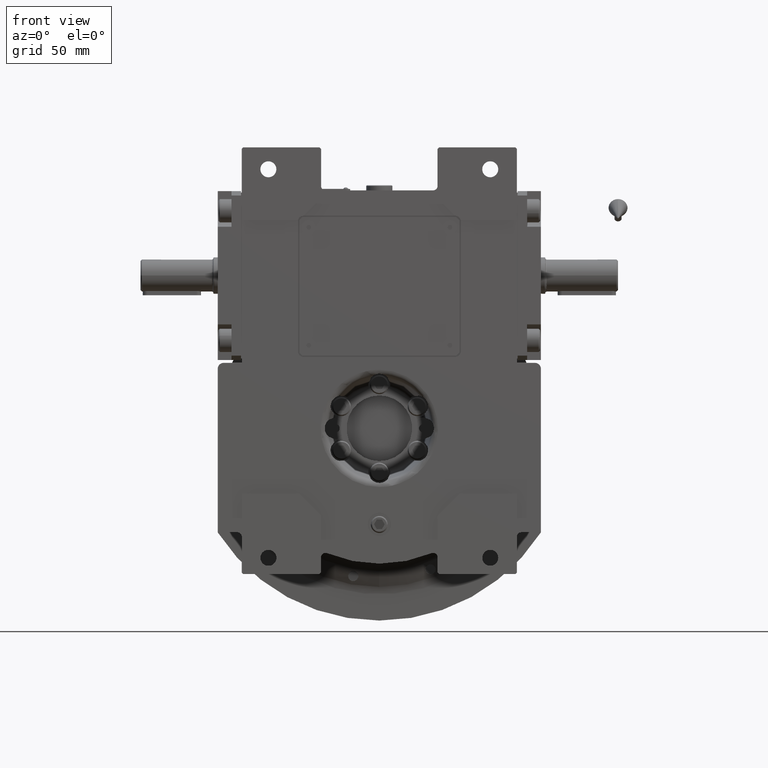
[diagram: clean part render]
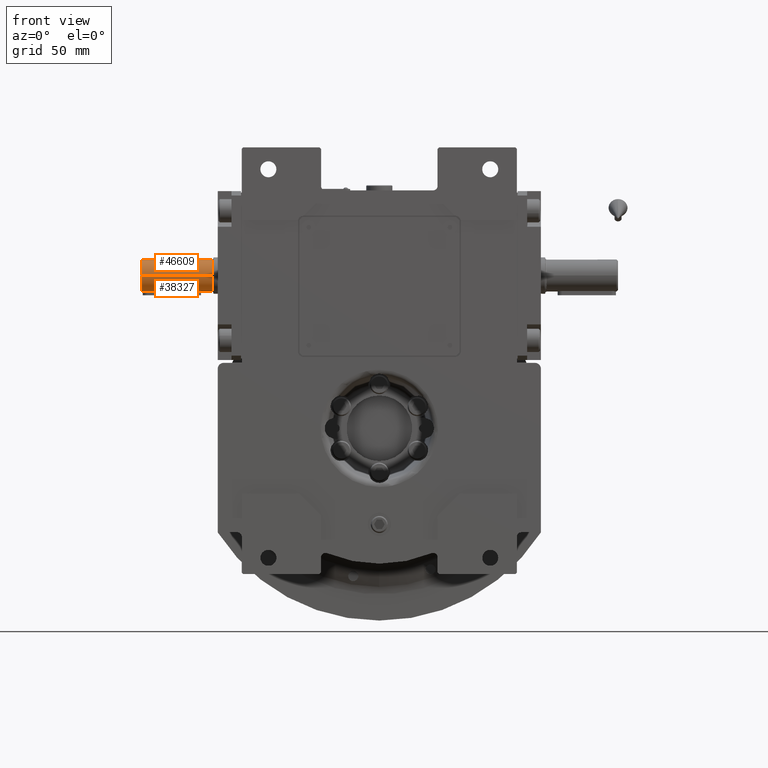
[diagram: same view with one multi-face feature highlighted, each face labeled with its STEP entity id]
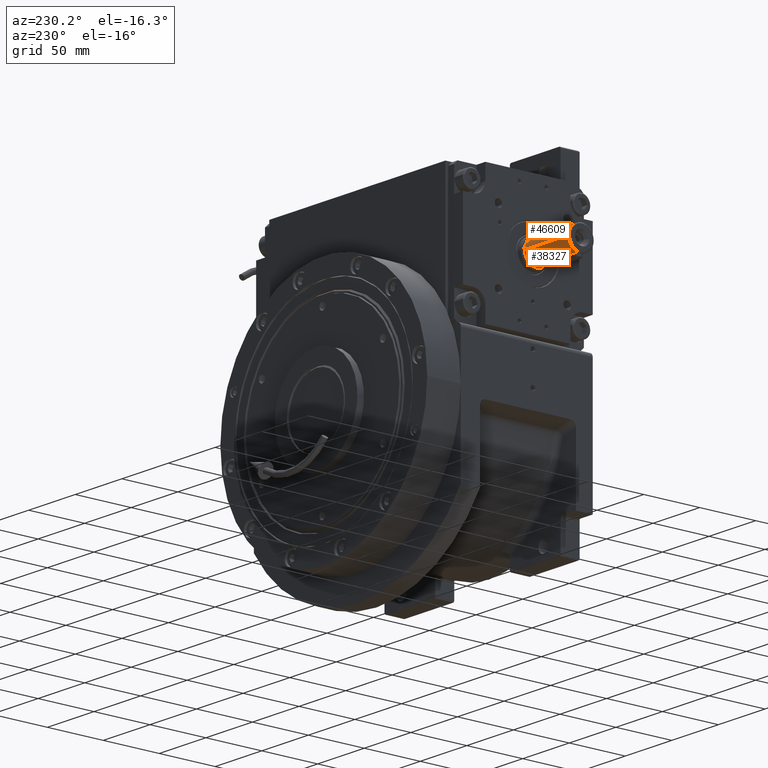
[diagram: same view with one multi-face feature highlighted, each face labeled with its STEP entity id]
A machine part, front view. The highlighted faces form ONE feature: a constant-radius fillet chain: 2 tangent blend faces with common blend radius 11 mm. The faces share edges in the B-rep.
A second angle (auxiliary view) of the same feature is appended — it is thin or edge-on in the first view.
Their STEP definitions:
[1] entity #46609 (Cylinder):
#1356 = CARTESIAN_POINT ( 'NONE',  ( 8.348436726547641190E-14, 208.9999108029441004, -10.99991079990971343 ) ) ;
#2759 = VERTEX_POINT ( 'NONE', #7913 ) ;
#5079 = CARTESIAN_POINT ( 'NONE',  ( -9.611494287303022688, 208.9998216060406548, -5.539719106973692853 ) ) ;
#6327 = CARTESIAN_POINT ( 'NONE',  ( 8.796192603699495294, 208.9998216058430103, -6.759904287097469044 ) ) ;
#7016 = CARTESIAN_POINT ( 'NONE',  ( 8.348436726547641190E-14, 208.9999108029441004, -10.99991079990971343 ) ) ;
#7913 = CARTESIAN_POINT ( 'NONE',  ( -11.00000000000000000, 161.0000000000000284, -4.628547545237893246E-09 ) ) ;
#9653 = EDGE_CURVE ( 'NONE', #33626, #2759, #21264, .T. ) ;
#11753 = DIRECTION ( 'NONE',  ( -4.190823558986625216E-31, 1.000000000000000000, 8.381647117973250432E-31 ) ) ;
#16119 = CYLINDRICAL_SURFACE ( 'NONE', #52306, 11.00000000000000000 ) ;
#17120 = DIRECTION ( 'NONE',  ( -1.000000000000000000, 0.000000000000000000, 7.549516567451066053E-15 ) ) ;
#17142 = DIRECTION ( 'NONE',  ( 1.000000000000000000, 0.000000000000000000, -7.588538872936350375E-15 ) ) ;
#17989 = EDGE_CURVE ( 'NONE', #2759, #44556, #36127, .T. ) ;
#18351 = CARTESIAN_POINT ( 'NONE',  ( 9.611494386408642399, 208.9998216058298226, -5.539718941646428085 ) ) ;
#21264 = CIRCLE ( 'NONE', #44992, 11.00000000000000000 ) ;
#21582 = CARTESIAN_POINT ( 'NONE',  ( 11.00000000000000000, 161.0000000000000284, 4.629005512235551123E-09 ) ) ;
#23950 = EDGE_CURVE ( 'NONE', #46419, #31679, #46762, .T. ) ;
#24407 = B_SPLINE_CURVE_WITH_KNOTS ( 'NONE', 3,
 ( #1356, #37521, #25724, #62894, #47661, #36865, #5079, #51741, #57492, #41903 ),
 .UNSPECIFIED., .F., .F.,
 ( 4, 2, 2, 2, 4 ),
 ( 0.5000000041388067418, 0.6250000031041050841, 0.7500000020694035374, 0.8750000010347016577, 1.000000000000000000 ),
 .UNSPECIFIED. ) ;
#25724 = CARTESIAN_POINT ( 'NONE',  ( -2.879179983519349673, 208.9998216059615856, -10.71352569620751538 ) ) ;
#26572 = EDGE_LOOP ( 'NONE', ( #46343, #46758, #48083, #38840, #49494 ) ) ;
#28828 = DIRECTION ( 'NONE',  ( -4.190823558986625216E-31, 1.000000000000000000, 8.381647117973250432E-31 ) ) ;
#29204 = CARTESIAN_POINT ( 'NONE',  ( 10.99982159923406400, 208.9998216057902880, -1.439873285504408296 ) ) ;
#30432 = EDGE_CURVE ( 'NONE', #33626, #46419, #33877, .T. ) ;
#31061 = DIRECTION ( 'NONE',  ( -4.190823558986625216E-31, 1.000000000000000000, 8.381647117973250432E-31 ) ) ;
#31679 = VERTEX_POINT ( 'NONE', #57009 ) ;
#33626 = VERTEX_POINT ( 'NONE', #21582 ) ;
#33877 = LINE ( 'NONE', #34214, #63745 ) ;
#33922 = CARTESIAN_POINT ( 'NONE',  ( 1.439873279901216829, 208.9998216059220510, -10.99982159983306218 ) ) ;
#34214 = CARTESIAN_POINT ( 'NONE',  ( 11.00000000000000000, 161.0000000000000284, 0.000000000000000000 ) ) ;
#34339 = CARTESIAN_POINT ( 'NONE',  ( -10.99995538991750088, 208.9999554115215119, -1.645558550533721132E-07 ) ) ;
#36127 = LINE ( 'NONE', #56745, #56431 ) ;
#36865 = CARTESIAN_POINT ( 'NONE',  ( -8.796192498803421245, 208.9998216060274672, -6.759904418209416121 ) ) ;
#37093 = FACE_OUTER_BOUND ( 'NONE', #26572, .T. ) ;
#37521 = CARTESIAN_POINT ( 'NONE',  ( -1.439873256063618490, 208.9998216059484264, -10.99982159980673657 ) ) ;
#38840 = ORIENTED_EDGE ( 'NONE', *, *, #17989, .T. ) ;
#39651 = CARTESIAN_POINT ( 'NONE',  ( 5.539718936738789345, 208.9998216058825449, -9.611494389175367914 ) ) ;
#41903 = CARTESIAN_POINT ( 'NONE',  ( -10.99995538991750088, 208.9999554115215119, -1.645558550533721132E-07 ) ) ;
#43882 = CARTESIAN_POINT ( 'NONE',  ( 11.00000000000000000, 208.9999777057610117, 0.000000000000000000 ) ) ;
#44376 = CARTESIAN_POINT ( 'NONE',  ( 10.71352568530425131, 208.9998216058034757, -2.879180036626198369 ) ) ;
#44556 = VERTEX_POINT ( 'NONE', #34339 ) ;
#44992 = AXIS2_PLACEMENT_3D ( 'NONE', #59090, #11753, #17142 ) ;
#46343 = ORIENTED_EDGE ( 'NONE', *, *, #23950, .F. ) ;
#46419 = VERTEX_POINT ( 'NONE', #43882 ) ;
#46609 = ADVANCED_FACE ( 'NONE', ( #37093 ), #16119, .T. ) ;
#46758 = ORIENTED_EDGE ( 'NONE', *, *, #30432, .F. ) ;
#46762 = B_SPLINE_CURVE_WITH_KNOTS ( 'NONE', 3,
 ( #52647, #29204, #44376, #18351, #6327, #53323, #39651, #60295, #33922, #7016 ),
 .UNSPECIFIED., .F., .F.,
 ( 4, 2, 2, 2, 4 ),
 ( 0.000000000000000000, 0.1250000010347017687, 0.2500000020694034819, 0.3750000031041051396, 0.5000000041388067418 ),
 .UNSPECIFIED. ) ;
#47661 = CARTESIAN_POINT ( 'NONE',  ( -6.759904185019623313, 208.9998216060011771, -8.796192678043544433 ) ) ;
#47687 = EDGE_CURVE ( 'NONE', #31679, #44556, #24407, .T. ) ;
#47894 = CARTESIAN_POINT ( 'NONE',  ( -1.806714880829665954E-27, 160.0000000000000284, 4.718447854656915297E-13 ) ) ;
#48083 = ORIENTED_EDGE ( 'NONE', *, *, #9653, .T. ) ;
#49494 = ORIENTED_EDGE ( 'NONE', *, *, #47687, .F. ) ;
#51741 = CARTESIAN_POINT ( 'NONE',  ( -10.71352561977210627, 208.9998216060669733, -2.879180267530153881 ) ) ;
#52306 = AXIS2_PLACEMENT_3D ( 'NONE', #47894, #58736, #17120 ) ;
#52647 = CARTESIAN_POINT ( 'NONE',  ( 11.00000000000000000, 208.9999777057610117, 0.000000000000000000 ) ) ;
#53323 = CARTESIAN_POINT ( 'NONE',  ( 6.759904282614697557, 208.9998216058694140, -8.796192607111569473 ) ) ;
#56431 = VECTOR ( 'NONE', #31061, 1000.000000000000000 ) ;
#56745 = CARTESIAN_POINT ( 'NONE',  ( -11.00000000000000000, 161.0000000000000284, 4.718447854656915297E-13 ) ) ;
#57009 = CARTESIAN_POINT ( 'NONE',  ( 8.348436726547641190E-14, 208.9999108029441004, -10.99991079990971343 ) ) ;
#57492 = CARTESIAN_POINT ( 'NONE',  ( -10.99982156150041668, 208.9998216060801894, -1.439873547674900500 ) ) ;
#58736 = DIRECTION ( 'NONE',  ( 4.190823558986625216E-31, -1.000000000000000000, -8.381647117973250432E-31 ) ) ;
#59090 = CARTESIAN_POINT ( 'NONE',  ( -8.881784197019319210E-16, 161.0000000000000284, 4.718447854656915297E-13 ) ) ;
#60295 = CARTESIAN_POINT ( 'NONE',  ( 2.879180031158224740, 208.9998216059088918, -10.71352568666412175 ) ) ;
#62894 = CARTESIAN_POINT ( 'NONE',  ( -5.539718852179369435, 208.9998216059880178, -9.611494434219167715 ) ) ;
#63745 = VECTOR ( 'NONE', #28828, 1000.000000000000000 ) ;
[2] entity #38327 (Cylinder):
#10 = VERTEX_POINT ( 'NONE', #52201 ) ;
#17 = B_SPLINE_CURVE_WITH_KNOTS ( 'NONE', 3,
 ( #43343, #63993, #13246, #59250, #17980, #64318, #18304, #17323, #33872, #38303, #54509, #12907, #12591, #53516, #64638, #43006, #58929, #54187 ),
 .UNSPECIFIED., .F., .F.,
 ( 4, 2, 2, 2, 2, 2, 2, 2, 4 ),
 ( 0.000000000000000000, 0.1250000000000000000, 0.2500000000000000000, 0.3750000000000000000, 0.5000000000000000000, 0.6250000000000000000, 0.7500000000000000000, 0.8750000000000000000, 1.000000000000000000 ),
 .UNSPECIFIED. ) ;
#786 = ORIENTED_EDGE ( 'NONE', *, *, #18580, .F. ) ;
#822 = CARTESIAN_POINT ( 'NONE',  ( -2.854075951817782286, 170.5744775876573556, 10.62355100343989101 ) ) ;
#942 = CARTESIAN_POINT ( 'NONE',  ( -0.6690471670458788545, 208.4261023684203451, 10.97984746646838872 ) ) ;
#1497 = CARTESIAN_POINT ( 'NONE',  ( -2.831211770130450223, 170.5058840566492506, 10.62945303911996753 ) ) ;
#1630 = B_SPLINE_CURVE_WITH_KNOTS ( 'NONE', 3,
 ( #29422, #39848, #55417, #14154, #24994, #12905, #9420, #66216, #49988, #35444, #34795, #19890, #54185, #29739, #7868, #50644, #50321, #7210, #3683, #4008, #30059, #45583, #40519, #27822, #14813, #48417, #56408, #61834, #10760, #10092, #15496, #59257, #66547, #5017, #15152, #36132, #57080, #5696, #942, #11100, #46248, #5356, #62488, #51336, #41522, #35793, #20905, #31407, #51672, #41188, #51004, #62831, #41839, #36460, #25998, #46581, #4681, #25656, #16152, #52016, #31734, #25328, #45913, #56058, #20562, #30735, #56752, #36794, #10434, #15825, #31068, #42173 ),
 .UNSPECIFIED., .F., .F.,
 ( 4, 2, 2, 1, 1, 1, 2, 2, 2, 2, 2, 2, 2, 2, 2, 2, 1, 1, 2, 2, 2, 2, 2, 1, 1, 1, 2, 2, 2, 2, 2, 2, 2, 2, 2, 2, 1, 1, 2, 2, 4 ),
 ( 0.000000000000000000, 0.06249999999979319321, 0.09374999999968548769, 0.1093749999996316419, 0.1171874999996089517, 0.1210937499995975442, 0.1230468749995918820, 0.1249999999995862060, 0.1874999999995273503, 0.2187499999995015654, 0.2343749999994916011, 0.2421874999994891586, 0.2499999999994867439, 0.3124999999994863553, 0.3437499999994862443, 0.3593749999994861333, 0.3671874999994884647, 0.3710937499994895195, 0.3730468749994876321, 0.3749999999994858002, 0.4999999999993999245, 0.5624999999993569588, 0.5937499999993364197, 0.6093749999993260946, 0.6171874999993223199, 0.6210937499993219868, 0.6230468749993218758, 0.6249999999993216537, 0.6874999999994270139, 0.7187499999994796385, 0.7343749999995060618, 0.7421874999995192734, 0.7499999999995324851, 0.8124999999996329603, 0.8437499999996794786, 0.8593749999997026823, 0.8671874999997142286, 0.8710937499997200018, 0.8730468749997227773, 0.8749999999997254418, 1.000000000000000000 ),
 .UNSPECIFIED. ) ;
#2150 = DIRECTION ( 'NONE',  ( 4.190823558986625216E-31, -1.000000000000000000, -8.381647117973250432E-31 ) ) ;
#2759 = VERTEX_POINT ( 'NONE', #7913 ) ;
#2820 = CARTESIAN_POINT ( 'NONE',  ( 0.1869661390004682955, 168.4999999914901139, 11.00000259683182691 ) ) ;
#3491 = CARTESIAN_POINT ( 'NONE',  ( -1.157452472523895493, 168.7322670704961354, 10.93890088078124201 ) ) ;
#3683 = CARTESIAN_POINT ( 'NONE',  ( 2.232376909501758266, 207.5043586967249496, 10.77130172318535983 ) ) ;
#3813 = CARTESIAN_POINT ( 'NONE',  ( -1.942138540634602784, 169.1995151677060107, 10.82877006683071386 ) ) ;
#4008 = CARTESIAN_POINT ( 'NONE',  ( 2.211193640733474020, 207.5277207285452619, 10.77562492030889985 ) ) ;
#4681 = CARTESIAN_POINT ( 'NONE',  ( -2.097777976926294752, 207.6448604349320135, 10.79818610642119481 ) ) ;
#5017 = CARTESIAN_POINT ( 'NONE',  ( 1.157452513228705016, 208.2677329124778964, 10.93890087851657711 ) ) ;
#5356 = CARTESIAN_POINT ( 'NONE',  ( -0.9835473798974589954, 208.3349984927263279, 10.95606726062416847 ) ) ;
#5696 = CARTESIAN_POINT ( 'NONE',  ( -0.3790211413637414317, 208.4824720792036317, 10.99496479331891052 ) ) ;
#6245 = CARTESIAN_POINT ( 'NONE',  ( -2.920736532385515005, 170.8079215815316161, 10.60630211995170846 ) ) ;
#6643 = CARTESIAN_POINT ( 'NONE',  ( -3.000000000000073719, 205.5000000000000284, 10.58300524425835576 ) ) ;
#6922 = CARTESIAN_POINT ( 'NONE',  ( -1.806714880829665954E-27, 160.0000000000000284, 4.718447854656915297E-13 ) ) ;
#7210 = CARTESIAN_POINT ( 'NONE',  ( 2.293773036830393686, 207.4345405295221951, 10.75861599544649572 ) ) ;
#7260 = CARTESIAN_POINT ( 'NONE',  ( -2.438082279217011372, 169.7481291815186353, 10.72743677364182346 ) ) ;
#7777 = AXIS2_PLACEMENT_3D ( 'NONE', #48609, #17174, #58453 ) ;
#7868 = CARTESIAN_POINT ( 'NONE',  ( 2.498350418695179265, 207.1636855961121739, 10.71355035712630688 ) ) ;
#7912 = CARTESIAN_POINT ( 'NONE',  ( -1.433641062218309337, 168.8634036539154408, 10.90581971317198651 ) ) ;
#7913 = CARTESIAN_POINT ( 'NONE',  ( -11.00000000000000000, 161.0000000000000284, -4.628547545237893246E-09 ) ) ;
#7948 = ORIENTED_EDGE ( 'NONE', *, *, #9276, .F. ) ;
#8900 = CARTESIAN_POINT ( 'NONE',  ( 2.999999999999926281, 171.5000000000000284, 10.58300524425835576 ) ) ;
#9276 = EDGE_CURVE ( 'NONE', #59293, #38504, #18557, .T. ) ;
#9420 = CARTESIAN_POINT ( 'NONE',  ( 2.831211821317812127, 206.4941158000846713, 10.62945302409086779 ) ) ;
#10092 = CARTESIAN_POINT ( 'NONE',  ( 1.208542031159796082, 208.2459059719581091, 10.93334475918530480 ) ) ;
#10434 = CARTESIAN_POINT ( 'NONE',  ( -2.768513007301309781, 206.6555825828829143, 10.64570308271039600 ) ) ;
#10692 = EDGE_CURVE ( 'NONE', #38504, #65246, #1630, .T. ) ;
#10760 = CARTESIAN_POINT ( 'NONE',  ( 1.234039166872521687, 208.2345037874122511, 10.93043900165574023 ) ) ;
#11100 = CARTESIAN_POINT ( 'NONE',  ( -0.7660298785186825388, 208.4023087729604526, 10.97354825509163589 ) ) ;
#11971 = FACE_OUTER_BOUND ( 'NONE', #12532, .T. ) ;
#11978 = CARTESIAN_POINT ( 'NONE',  ( -2.293773039446043605, 169.5654594730333997, 10.75861599459850027 ) ) ;
#12312 = CARTESIAN_POINT ( 'NONE',  ( -3.000000000000080380, 171.2969416959749935, 10.58473538646192047 ) ) ;
#12532 = EDGE_LOOP ( 'NONE', ( #39030, #65600, #786, #52508 ) ) ;
#12591 = CARTESIAN_POINT ( 'NONE',  ( 6.759904280527829101, 208.9998216057764466, 8.796192608861028717 ) ) ;
#12905 = CARTESIAN_POINT ( 'NONE',  ( 2.854076010124392937, 206.4255222335273459, 10.62355098402704634 ) ) ;
#12907 = CARTESIAN_POINT ( 'NONE',  ( 5.539718934293243358, 208.9998216057761340, 9.611494390734476312 ) ) ;
#13246 = CARTESIAN_POINT ( 'NONE',  ( -10.71352568672911154, 208.9998216057715865, 2.879180031534207984 ) ) ;
#13292 = CARTESIAN_POINT ( 'NONE',  ( 1.429970974490046398, 168.8554804092703421, 10.90719154593360152 ) ) ;
#13618 = CARTESIAN_POINT ( 'NONE',  ( 2.601559605864343538, 170.0028386211674274, 10.68881833244912549 ) ) ;
#13939 = CARTESIAN_POINT ( 'NONE',  ( 2.999999999999926281, 205.5000000000000284, 10.58300524425835576 ) ) ;
#13948 = CARTESIAN_POINT ( 'NONE',  ( 2.644564864764742840, 170.0812713992473277, 10.67795870609824327 ) ) ;
#14154 = CARTESIAN_POINT ( 'NONE',  ( 2.920736592802828380, 206.1920781631040427, 10.60630209123707246 ) ) ;
#14291 = CARTESIAN_POINT ( 'NONE',  ( 1.109627269032139152, 168.7127040845179238, 10.94387156488032531 ) ) ;
#14813 = CARTESIAN_POINT ( 'NONE',  ( 1.512920505027652407, 208.0924210222171951, 10.89501527399900027 ) ) ;
#15152 = CARTESIAN_POINT ( 'NONE',  ( 0.7694195325722928969, 208.4290248706462023, 10.97983835631162108 ) ) ;
#15496 = CARTESIAN_POINT ( 'NONE',  ( 1.179703648391469128, 208.2583393865936614, 10.93651199430383691 ) ) ;
#15825 = CARTESIAN_POINT ( 'NONE',  ( -2.916726216699192076, 206.2985075118487828, 10.60716823416496801 ) ) ;
#16152 = CARTESIAN_POINT ( 'NONE',  ( -2.446669781241361807, 207.2470619033198318, 10.72593578221498234 ) ) ;
#17174 = DIRECTION ( 'NONE',  ( -4.190823558986625216E-31, 1.000000000000000000, 8.381647117973250432E-31 ) ) ;
#17323 = CARTESIAN_POINT ( 'NONE',  ( -2.879180034990576953, 208.9998216057742297, 10.71352568579750297 ) ) ;
#17501 = VECTOR ( 'NONE', #42016, 1000.000000000000000 ) ;
#17980 = CARTESIAN_POINT ( 'NONE',  ( -8.796192606682934567, 208.9998216057725244, 6.759904283368526556 ) ) ;
#17989 = EDGE_CURVE ( 'NONE', #2759, #44556, #36127, .T. ) ;
#18304 = CARTESIAN_POINT ( 'NONE',  ( -5.539718940497369459, 208.9998216057735476, 9.611494387161672037 ) ) ;
#18353 = CARTESIAN_POINT ( 'NONE',  ( -1.286031867911195947, 168.7893586459718449, 10.92437284069473513 ) ) ;
#18557 = LINE ( 'NONE', #55070, #46146 ) ;
#18580 = EDGE_CURVE ( 'NONE', #44556, #46419, #17, .T. ) ;
#18687 = CARTESIAN_POINT ( 'NONE',  ( 2.097778072076528222, 169.3551396584122983, 10.79818608746039565 ) ) ;
#19021 = CARTESIAN_POINT ( 'NONE',  ( -2.143602725503916062, 169.4009598796852458, 10.78918131756622500 ) ) ;
#19348 = CARTESIAN_POINT ( 'NONE',  ( 0.3790212450437298597, 168.5175279328498164, 10.99496478591223259 ) ) ;
#19890 = CARTESIAN_POINT ( 'NONE',  ( 2.772312108320804658, 206.6464297925444100, 10.64471543524964936 ) ) ;
#20562 = CARTESIAN_POINT ( 'NONE',  ( -2.748365588727722741, 206.7029063017605779, 10.65097208023377284 ) ) ;
#20905 = CARTESIAN_POINT ( 'NONE',  ( -1.147497220845979271, 208.2718709842086469, 10.93995103843515260 ) ) ;
#21199 = CARTESIAN_POINT ( 'NONE',  ( 2.999999999999926281, 171.5000000000000284, 10.58300524425835576 ) ) ;
#21445 = CARTESIAN_POINT ( 'NONE',  ( -2.786545469109216633, 170.3885086293562949, 10.64101914187423681 ) ) ;
#21582 = CARTESIAN_POINT ( 'NONE',  ( 11.00000000000000000, 161.0000000000000284, 4.629005512235551123E-09 ) ) ;
#21780 = CARTESIAN_POINT ( 'NONE',  ( -2.779840256848175262, 170.3719381161269268, 10.64275983800443548 ) ) ;
#22113 = CYLINDRICAL_SURFACE ( 'NONE', #45255, 11.00000000000000000 ) ;
#22121 = CARTESIAN_POINT ( 'NONE',  ( -2.498350456136470221, 169.8363144599198051, 10.71355034653169014 ) ) ;
#22448 = CARTESIAN_POINT ( 'NONE',  ( -2.979326648543515699, 171.0971223052072503, 10.59077587316052238 ) ) ;
#23122 = CARTESIAN_POINT ( 'NONE',  ( -1.234039142372917341, 168.7654962015103592, 10.93043900252522072 ) ) ;
#23447 = CARTESIAN_POINT ( 'NONE',  ( 2.076400037127481557, 169.3344725131065616, 10.80229493266220686 ) ) ;
#23776 = CARTESIAN_POINT ( 'NONE',  ( 0.6690472934797423443, 168.5738976602024479, 10.97984745790703087 ) ) ;
#24123 = CARTESIAN_POINT ( 'NONE',  ( 2.764613483579594355, 170.3351272444222104, 10.64672004548993733 ) ) ;
#24461 = CARTESIAN_POINT ( 'NONE',  ( -0.3739326876441928516, 168.5000000170199428, 10.99999480633900717 ) ) ;
#24994 = CARTESIAN_POINT ( 'NONE',  ( 2.896620549922614529, 206.2867366109769875, 10.61255509526254848 ) ) ;
#25328 = CARTESIAN_POINT ( 'NONE',  ( -2.698907439505213279, 206.8105446094842534, 10.66393854603710345 ) ) ;
#25656 = CARTESIAN_POINT ( 'NONE',  ( -2.308734620827886275, 207.4339242235998597, 10.75673222121823080 ) ) ;
#25842 = ORIENTED_EDGE ( 'NONE', *, *, #36860, .F. ) ;
#25998 = CARTESIAN_POINT ( 'NONE',  ( -2.031554776398934337, 207.7076529620197221, 10.81075491461140992 ) ) ;
#26870 = CARTESIAN_POINT ( 'NONE',  ( -2.775339617218290922, 170.3609102421057173, 10.64392872073281993 ) ) ;
#27217 = CARTESIAN_POINT ( 'NONE',  ( -3.000000000000073719, 171.5000000000000284, 10.58300524425882827 ) ) ;
#27822 = CARTESIAN_POINT ( 'NONE',  ( 1.761503382575570598, 207.9362690075281250, 10.85852761685147527 ) ) ;
#27873 = CARTESIAN_POINT ( 'NONE',  ( -2.232376894938086220, 169.4956412869229325, 10.77130172608870140 ) ) ;
#28210 = CARTESIAN_POINT ( 'NONE',  ( -1.512920505492289402, 168.9075789781375363, 10.89501527342681975 ) ) ;
#28291 = CIRCLE ( 'NONE', #7777, 11.00000000000000000 ) ;
#28539 = DIRECTION ( 'NONE',  ( -1.000000000000000000, 0.000000000000000000, 7.549516567451066053E-15 ) ) ;
#28546 = CARTESIAN_POINT ( 'NONE',  ( 1.765016624717449245, 169.0715607216540377, 10.85718209647383681 ) ) ;
#28828 = DIRECTION ( 'NONE',  ( -4.190823558986625216E-31, 1.000000000000000000, 8.381647117973250432E-31 ) ) ;
#28945 = ORIENTED_EDGE ( 'NONE', *, *, #10692, .F. ) ;
#29205 = CARTESIAN_POINT ( 'NONE',  ( 2.308734591574675310, 169.5660757615260650, 10.75673222596681278 ) ) ;
#29422 = CARTESIAN_POINT ( 'NONE',  ( 2.999999999999926281, 205.5000000000000284, 10.58300524425835576 ) ) ;
#29514 = B_SPLINE_CURVE_WITH_KNOTS ( 'NONE', 3,
 ( #27217, #12312, #22448, #6245, #42724, #822, #1497, #43057, #21445, #21780, #26870, #47463, #53571, #47805, #22121, #7260, #63374, #11978, #27873, #48468, #33598, #19021, #3813, #59968, #28210, #7912, #39654, #18353, #23122, #39331, #49448, #65681, #44713, #3491, #49791, #24461, #2820, #19348, #23776, #39981, #65357, #60626, #45045, #14291, #49127, #34917, #50121, #39002, #13292, #43719, #28546, #44378, #55544, #60296, #29542, #23447, #18687, #29205, #59641, #13618, #13948, #65027, #34255, #64366, #64686, #34585, #24123, #48799, #59295, #54883, #55219, #8900 ),
 .UNSPECIFIED., .F., .F.,
 ( 4, 2, 2, 1, 1, 1, 2, 2, 2, 2, 2, 2, 2, 2, 2, 2, 1, 1, 2, 2, 2, 2, 2, 1, 1, 1, 2, 2, 2, 2, 2, 2, 2, 2, 2, 2, 1, 1, 2, 2, 4 ),
 ( 0.000000000000000000, 0.06249999999987385091, 0.09374999999981076249, 0.1093749999997834788, 0.1171874999997698091, 0.1210937499997629813, 0.1230468749997596228, 0.1249999999997562505, 0.1874999999998356592, 0.2187499999998752942, 0.2343749999998922529, 0.2421874999998981370, 0.2499999999999040212, 0.3124999999999651945, 0.3437499999999957812, 0.3593750000000087153, 0.3671875000000128231, 0.3710937500000148770, 0.3730468750000183187, 0.3750000000000217604, 0.5000000000001676437, 0.5625000000002406964, 0.5937500000002772227, 0.6093750000002954303, 0.6171875000003045342, 0.6210937500003090861, 0.6230468750003097522, 0.6250000000003104184, 0.6875000000003234080, 0.7187500000003322898, 0.7343750000003390621, 0.7421875000003448353, 0.7500000000003506084, 0.8125000000004060086, 0.8437500000004299894, 0.8593750000004372058, 0.8671875000004463097, 0.8710937500004508616, 0.8730468750004469758, 0.8750000000004430900, 1.000000000000000000 ),
 .UNSPECIFIED. ) ;
#29542 = CARTESIAN_POINT ( 'NONE',  ( 2.031554838444890265, 169.2923470949750140, 10.81075490227133251 ) ) ;
#29739 = CARTESIAN_POINT ( 'NONE',  ( 2.653232687552503410, 206.9137802569441931, 10.67643290049545612 ) ) ;
#30059 = CARTESIAN_POINT ( 'NONE',  ( 2.167336623629462888, 207.5745314241212895, 10.78446055697714989 ) ) ;
#30432 = EDGE_CURVE ( 'NONE', #33626, #46419, #33877, .T. ) ;
#30735 = CARTESIAN_POINT ( 'NONE',  ( -2.759870969661187168, 206.6761076698489319, 10.64795842476979715 ) ) ;
#31061 = DIRECTION ( 'NONE',  ( -4.190823558986625216E-31, 1.000000000000000000, 8.381647117973250432E-31 ) ) ;
#31068 = CARTESIAN_POINT ( 'NONE',  ( -3.000000000000078604, 205.9062042931898304, 10.58646656928889129 ) ) ;
#31407 = CARTESIAN_POINT ( 'NONE',  ( -1.279005655815794507, 208.2172074779477953, 10.92607962582780168 ) ) ;
#31590 = CARTESIAN_POINT ( 'NONE',  ( -3.000000000000073719, 171.5000000000000284, 10.58300524425882827 ) ) ;
#31734 = CARTESIAN_POINT ( 'NONE',  ( -2.644564917222758105, 206.9187285013183555, 10.67795868685712435 ) ) ;
#32143 = EDGE_CURVE ( 'NONE', #10, #65246, #64257, .T. ) ;
#33598 = CARTESIAN_POINT ( 'NONE',  ( -2.167336588683644205, 169.4254685392180306, 10.78446056407007347 ) ) ;
#33626 = VERTEX_POINT ( 'NONE', #21582 ) ;
#33677 = EDGE_CURVE ( 'NONE', #2759, #33626, #28291, .T. ) ;
#33872 = CARTESIAN_POINT ( 'NONE',  ( -1.439873283641012858, 208.9998216057745140, 10.99982159951607841 ) ) ;
#33877 = LINE ( 'NONE', #34214, #63745 ) ;
#34214 = CARTESIAN_POINT ( 'NONE',  ( 11.00000000000000000, 161.0000000000000284, 0.000000000000000000 ) ) ;
#34255 = CARTESIAN_POINT ( 'NONE',  ( 2.715325017861220935, 170.2239481373033527, 10.65964339383729786 ) ) ;
#34339 = CARTESIAN_POINT ( 'NONE',  ( -10.99995538991750088, 208.9999554115215119, -1.645558550533721132E-07 ) ) ;
#34585 = CARTESIAN_POINT ( 'NONE',  ( 2.759870980702121113, 170.3238923559703721, 10.64795842688990746 ) ) ;
#34795 = CARTESIAN_POINT ( 'NONE',  ( 2.775339633358492986, 206.6390897185938229, 10.64392871889903880 ) ) ;
#34917 = CARTESIAN_POINT ( 'NONE',  ( 1.139533978096353595, 168.7248416225932601, 10.94078570534258787 ) ) ;
#35444 = CARTESIAN_POINT ( 'NONE',  ( 2.779840276394454524, 206.6280618357306196, 10.64275983503435086 ) ) ;
#35793 = CARTESIAN_POINT ( 'NONE',  ( -1.139533900953834111, 208.2751584090861456, 10.94078571015552725 ) ) ;
#36127 = LINE ( 'NONE', #56745, #56431 ) ;
#36132 = CARTESIAN_POINT ( 'NONE',  ( 0.3739325104841490499, 208.4999999856364070, 10.99999479697607541 ) ) ;
#36460 = CARTESIAN_POINT ( 'NONE',  ( -2.009136411221243090, 207.7280625489485146, 10.81489994510766550 ) ) ;
#36794 = CARTESIAN_POINT ( 'NONE',  ( -2.767734004599104125, 206.6574388666507502, 10.64590627739815432 ) ) ;
#36860 = EDGE_CURVE ( 'NONE', #10, #59293, #29514, .T. ) ;
#38303 = CARTESIAN_POINT ( 'NONE',  ( 1.439873276542152247, 208.9998216057751108, 10.99982160044466362 ) ) ;
#38327 = ADVANCED_FACE ( 'NONE', ( #11971, #53881 ), #22113, .T. ) ;
#38355 = ORIENTED_EDGE ( 'NONE', *, *, #32143, .T. ) ;
#38406 = EDGE_LOOP ( 'NONE', ( #38355, #28945, #7948, #25842 ) ) ;
#38504 = VERTEX_POINT ( 'NONE', #13939 ) ;
#39002 = CARTESIAN_POINT ( 'NONE',  ( 1.279005678273045454, 168.7827925354090155, 10.92607962578965264 ) ) ;
#39030 = ORIENTED_EDGE ( 'NONE', *, *, #33677, .T. ) ;
#39194 = DIRECTION ( 'NONE',  ( -4.190823558986625216E-31, 1.000000000000000000, 8.381647117973250432E-31 ) ) ;
#39331 = CARTESIAN_POINT ( 'NONE',  ( -1.208542002004602267, 168.7540940151675102, 10.93334476044181791 ) ) ;
#39654 = CARTESIAN_POINT ( 'NONE',  ( -1.322026423828879471, 168.8066771672218067, 10.91998920481134405 ) ) ;
#39848 = CARTESIAN_POINT ( 'NONE',  ( 2.999999999999920952, 205.7030581364574857, 10.58473536746739718 ) ) ;
#39981 = CARTESIAN_POINT ( 'NONE',  ( 0.7660300046609707092, 168.5976912605676716, 10.97354824663432815 ) ) ;
#40519 = CARTESIAN_POINT ( 'NONE',  ( 1.942138565853941845, 207.8004848156914761, 10.82877006207170112 ) ) ;
#41188 = CARTESIAN_POINT ( 'NONE',  ( -1.678559104051018824, 207.9883758854034284, 10.87070390130170239 ) ) ;
#41522 = CARTESIAN_POINT ( 'NONE',  ( -1.127575243858438991, 208.2800388084310441, 10.94202596088717527 ) ) ;
#41839 = CARTESIAN_POINT ( 'NONE',  ( -1.942007582189039017, 207.7873945690254232, 10.82708017654643484 ) ) ;
#42016 = DIRECTION ( 'NONE',  ( -4.190823558986625216E-31, 1.000000000000000000, 8.381647117973250432E-31 ) ) ;
#42173 = CARTESIAN_POINT ( 'NONE',  ( -3.000000000000073719, 205.5000000000000284, 10.58300524425835576 ) ) ;
#42724 = CARTESIAN_POINT ( 'NONE',  ( -2.896620484574007559, 170.7132631530699030, 10.61255512167265103 ) ) ;
#43006 = CARTESIAN_POINT ( 'NONE',  ( 10.71352568486465096, 208.9998216057781235, 2.879180038446522261 ) ) ;
#43057 = CARTESIAN_POINT ( 'NONE',  ( -2.801868823610907278, 170.4273724525710065, 10.63704591330718685 ) ) ;
#43343 = CARTESIAN_POINT ( 'NONE',  ( -10.99995538991750088, 208.9999554115215119, -1.645558550533721132E-07 ) ) ;
#43719 = CARTESIAN_POINT ( 'NONE',  ( 1.678559112312656865, 169.0116241200572915, 10.87070389965108319 ) ) ;
#43882 = CARTESIAN_POINT ( 'NONE',  ( 11.00000000000000000, 208.9999777057610117, 0.000000000000000000 ) ) ;
#44378 = CARTESIAN_POINT ( 'NONE',  ( 1.897425705253070083, 169.1755805140681161, 10.83486051008335416 ) ) ;
#44556 = VERTEX_POINT ( 'NONE', #34339 ) ;
#44713 = CARTESIAN_POINT ( 'NONE',  ( -1.159479155630789737, 168.7331195871554428, 10.93868412015501868 ) ) ;
#45045 = CARTESIAN_POINT ( 'NONE',  ( 1.067681326174936718, 168.6962141872421057, 10.94807461813112859 ) ) ;
#45255 = AXIS2_PLACEMENT_3D ( 'NONE', #6922, #2150, #28539 ) ;
#45583 = CARTESIAN_POINT ( 'NONE',  ( 2.143602779759605337, 207.5990400649874061, 10.78918130667785213 ) ) ;
#45913 = CARTESIAN_POINT ( 'NONE',  ( -2.715325038922841827, 206.7760518172297566, 10.65964338194845240 ) ) ;
#46146 = VECTOR ( 'NONE', #39194, 1000.000000000000000 ) ;
#46248 = CARTESIAN_POINT ( 'NONE',  ( -0.9111084508035232066, 208.3587463839891711, 10.96220928438663655 ) ) ;
#46419 = VERTEX_POINT ( 'NONE', #43882 ) ;
#46581 = CARTESIAN_POINT ( 'NONE',  ( -2.076399965673086712, 207.6655275553030151, 10.80229494691891112 ) ) ;
#47463 = CARTESIAN_POINT ( 'NONE',  ( -2.772312094891824508, 170.3535701749893008, 10.64471543622038219 ) ) ;
#47805 = CARTESIAN_POINT ( 'NONE',  ( -2.653232724297382106, 170.0862198111042574, 10.67643288751645692 ) ) ;
#48417 = CARTESIAN_POINT ( 'NONE',  ( 1.433641063859913301, 208.1365963449600542, 10.90581971387782190 ) ) ;
#48468 = CARTESIAN_POINT ( 'NONE',  ( -2.211193619821321565, 169.4722792484953686, 10.77562492455033727 ) ) ;
#48609 = CARTESIAN_POINT ( 'NONE',  ( -8.881784197018295663E-16, 161.0000000000000284, 4.579669976578770729E-13 ) ) ;
#48799 = CARTESIAN_POINT ( 'NONE',  ( 2.767734022707143193, 170.3425611766373891, 10.64590627712759385 ) ) ;
#49127 = CARTESIAN_POINT ( 'NONE',  ( 1.127575323570569443, 168.7199612239032547, 10.94202595588551397 ) ) ;
#49448 = CARTESIAN_POINT ( 'NONE',  ( -1.179703613028072251, 168.7416605982708973, 10.93651199609687730 ) ) ;
#49791 = CARTESIAN_POINT ( 'NONE',  ( -0.7694194016925647306, 168.5709750817599684, 10.97983836647868294 ) ) ;
#49988 = CARTESIAN_POINT ( 'NONE',  ( 2.786545493596085610, 206.6114913094266967, 10.64101913722736192 ) ) ;
#50121 = CARTESIAN_POINT ( 'NONE',  ( 1.147497296970661607, 168.7281290473081299, 10.93995103367353039 ) ) ;
#50321 = CARTESIAN_POINT ( 'NONE',  ( 2.331831469196719020, 207.3883554059316339, 10.75053732846294174 ) ) ;
#50644 = CARTESIAN_POINT ( 'NONE',  ( 2.438082247072540287, 207.2518708616502465, 10.72743678203931772 ) ) ;
#51004 = CARTESIAN_POINT ( 'NONE',  ( -1.765016607846088048, 207.9284392897766907, 10.85718209991657268 ) ) ;
#51336 = CARTESIAN_POINT ( 'NONE',  ( -1.109627185540406735, 208.2872959487409048, 10.94387157015933276 ) ) ;
#51672 = CARTESIAN_POINT ( 'NONE',  ( -1.429970973129989442, 208.1445195910418136, 10.90719154465723761 ) ) ;
#52016 = CARTESIAN_POINT ( 'NONE',  ( -2.601559668085960286, 206.9971612710416196, 10.68881831214253708 ) ) ;
#52201 = CARTESIAN_POINT ( 'NONE',  ( -3.000000000000073719, 171.5000000000000284, 10.58300524425882827 ) ) ;
#52508 = ORIENTED_EDGE ( 'NONE', *, *, #17989, .F. ) ;
#53516 = CARTESIAN_POINT ( 'NONE',  ( 8.796192602316750708, 208.9998216057771572, 6.759904289042378167 ) ) ;
#53571 = CARTESIAN_POINT ( 'NONE',  ( -2.722192573628704704, 170.2328222567296621, 10.65774367792656818 ) ) ;
#53881 = FACE_BOUND ( 'NONE', #38406, .T. ) ;
#54185 = CARTESIAN_POINT ( 'NONE',  ( 2.722192558527224637, 206.7671777832652253, 10.65774368688581752 ) ) ;
#54187 = CARTESIAN_POINT ( 'NONE',  ( 11.00000000000000000, 208.9999777057610117, 0.000000000000000000 ) ) ;
#54509 = CARTESIAN_POINT ( 'NONE',  ( 2.879180028076219422, 208.9998216057754803, 10.71352568765430746 ) ) ;
#54883 = CARTESIAN_POINT ( 'NONE',  ( 2.916726425407026202, 170.7014930090882672, 10.60716817197001127 ) ) ;
#55070 = CARTESIAN_POINT ( 'NONE',  ( 2.999999999999926281, 171.5000000000000284, 10.58300524425835576 ) ) ;
#55219 = CARTESIAN_POINT ( 'NONE',  ( 2.999999999999919176, 171.0937962497110334, 10.58646650751571272 ) ) ;
#55417 = CARTESIAN_POINT ( 'NONE',  ( 2.979326682313694352, 205.9028774423900074, 10.59077584461320853 ) ) ;
#55544 = CARTESIAN_POINT ( 'NONE',  ( 1.942007626740608561, 169.2126054684655969, 10.82708016768242310 ) ) ;
#56058 = CARTESIAN_POINT ( 'NONE',  ( -2.737723622719320904, 206.7268634571211408, 10.65376796009249638 ) ) ;
#56408 = CARTESIAN_POINT ( 'NONE',  ( 1.322026435441519654, 208.1933228270213192, 10.91998920494051184 ) ) ;
#56431 = VECTOR ( 'NONE', #31061, 1000.000000000000000 ) ;
#56745 = CARTESIAN_POINT ( 'NONE',  ( -11.00000000000000000, 161.0000000000000284, 4.718447854656915297E-13 ) ) ;
#56752 = CARTESIAN_POINT ( 'NONE',  ( -2.764613468312776767, 206.6648727917981319, 10.64672004479335143 ) ) ;
#57080 = CARTESIAN_POINT ( 'NONE',  ( -0.1869660823866986232, 208.5000000071818249, 11.00000260151293929 ) ) ;
#58453 = DIRECTION ( 'NONE',  ( -1.000000000000000000, 0.000000000000000000, 7.711003552851090256E-15 ) ) ;
#58929 = CARTESIAN_POINT ( 'NONE',  ( 10.99982159904755719, 208.9998216057784646, 1.439873287189853635 ) ) ;
#59250 = CARTESIAN_POINT ( 'NONE',  ( -9.611494388950392320, 208.9998216057721550, 5.539718937396585829 ) ) ;
#59257 = CARTESIAN_POINT ( 'NONE',  ( 1.167542354304431651, 208.2634876482844959, 10.93782163464049439 ) ) ;
#59293 = VERTEX_POINT ( 'NONE', #21199 ) ;
#59295 = CARTESIAN_POINT ( 'NONE',  ( 2.768513025352925983, 170.3444174603243084, 10.64570308239752272 ) ) ;
#59641 = CARTESIAN_POINT ( 'NONE',  ( 2.446669717013518319, 169.7529380078596262, 10.72593579875619696 ) ) ;
#59968 = CARTESIAN_POINT ( 'NONE',  ( -1.761503377498397249, 169.0637309891567384, 10.85852761823457158 ) ) ;
#60296 = CARTESIAN_POINT ( 'NONE',  ( 2.009136468733579761, 169.2719375028273703, 10.81489993367487301 ) ) ;
#60626 = CARTESIAN_POINT ( 'NONE',  ( 0.9835474860896797900, 168.6650015443500479, 10.95606725368446455 ) ) ;
#61834 = CARTESIAN_POINT ( 'NONE',  ( 1.286031883976461732, 208.2106413463210686, 10.92437284050215318 ) ) ;
#62488 = CARTESIAN_POINT ( 'NONE',  ( -1.067681234393989431, 208.3037858477821942, 10.94807462401718645 ) ) ;
#62831 = CARTESIAN_POINT ( 'NONE',  ( -1.897425668484651551, 207.8244195157290619, 10.83486051743896361 ) ) ;
#63374 = CARTESIAN_POINT ( 'NONE',  ( -2.331831480777063703, 169.6116446080049229, 10.75053732546463259 ) ) ;
#63745 = VECTOR ( 'NONE', #28828, 1000.000000000000000 ) ;
#63993 = CARTESIAN_POINT ( 'NONE',  ( -10.99982159998399567, 208.9998216057711602, 1.439873280092003771 ) ) ;
#64257 = LINE ( 'NONE', #31590, #17501 ) ;
#64318 = CARTESIAN_POINT ( 'NONE',  ( -6.759904286206499968, 208.9998216057732066, 8.796192604501118950 ) ) ;
#64366 = CARTESIAN_POINT ( 'NONE',  ( 2.737723616411819716, 170.2731365286352059, 10.65376796770135215 ) ) ;
#64638 = CARTESIAN_POINT ( 'NONE',  ( 9.611494385370731308, 208.9998216057774698, 5.539718943596763978 ) ) ;
#64686 = CARTESIAN_POINT ( 'NONE',  ( 2.748365590168971639, 170.2970937011939725, 10.65097208548508156 ) ) ;
#65027 = CARTESIAN_POINT ( 'NONE',  ( 2.698907409592853579, 170.1894553284683695, 10.66393856019913677 ) ) ;
#65246 = VERTEX_POINT ( 'NONE', #6643 ) ;
#65357 = CARTESIAN_POINT ( 'NONE',  ( 0.9111085654770401110, 168.6412536526179053, 10.96220927681882351 ) ) ;
#65600 = ORIENTED_EDGE ( 'NONE', *, *, #30432, .T. ) ;
#65681 = CARTESIAN_POINT ( 'NONE',  ( -1.167542316113182599, 168.7365123355784817, 10.93782163668169360 ) ) ;
#66216 = CARTESIAN_POINT ( 'NONE',  ( 2.801868858470870194, 206.5726274570406247, 10.63704590494140412 ) ) ;
#66547 = CARTESIAN_POINT ( 'NONE',  ( 1.159479195744522739, 208.2668803960329171, 10.93868411794433371 ) ) ;